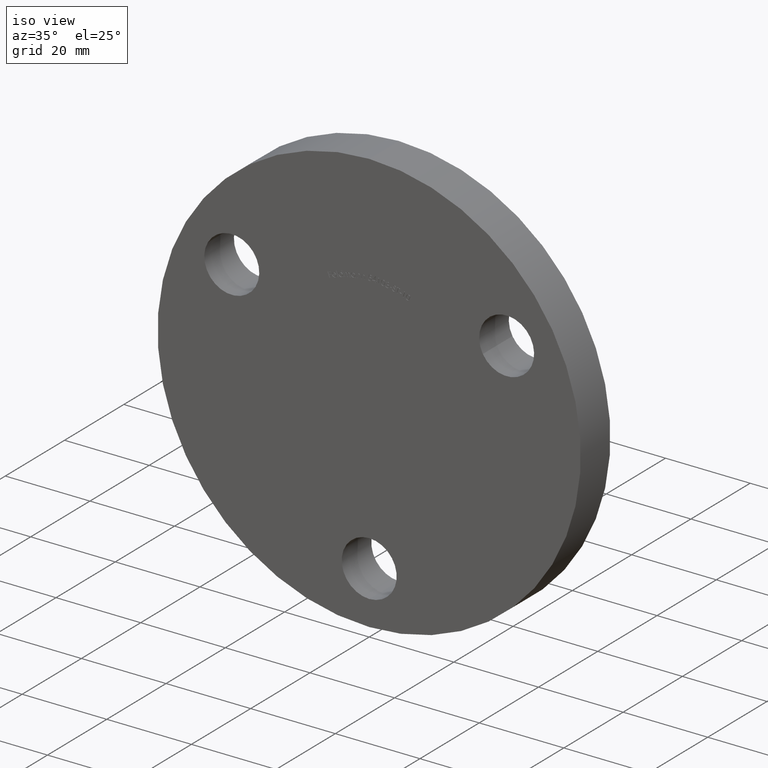
[diagram: clean part render]
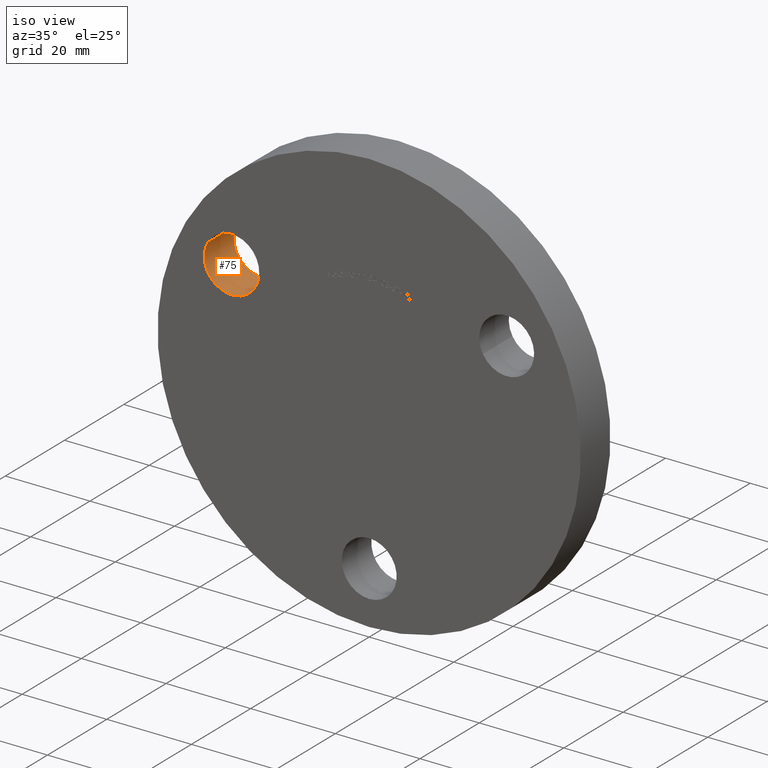
[diagram: same view with one face highlighted and labeled with its STEP entity id]
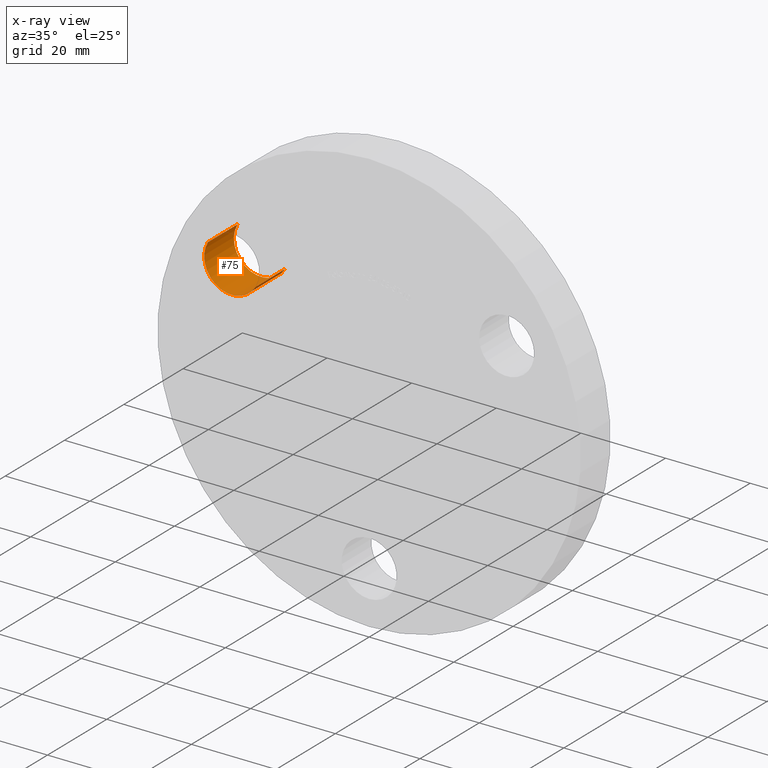
[diagram: x-ray of the same camera — body ghosted, the highlighted face saturated]
A machine part, iso view. The second image highlights one B-rep face of the part: STEP entity #75.
The next image is the same camera in x-ray: the body ghosted, the highlighted face saturated — about 0% of this face is hidden behind the body in this view.
In plain terms, the highlighted cylindrical surface (edge-blend (fillet) strip) has radius 6.5 mm, axis along (0, 1, 0).
Its self-contained STEP definition (entity closure, byte-faithful):
#75 = ADVANCED_FACE ( 'NONE', ( #7315 ), #4789, .F. ) ;
#269 = CARTESIAN_POINT ( 'NONE',  ( -26.84678751731773600, 0.0000000000000000000, 15.49999999999975000 ) ) ;
#649 = CARTESIAN_POINT ( 'NONE',  ( -26.84678751731773600, 10.00000000000000000, 15.49999999999975000 ) ) ;
#1003 = ORIENTED_EDGE ( 'NONE', *, *, #11495, .T. ) ;
#1180 = AXIS2_PLACEMENT_3D ( 'NONE', #7341, #4210, #11296 ) ;
#1588 = VERTEX_POINT ( 'NONE', #6231 ) ;
#1964 = CARTESIAN_POINT ( 'NONE',  ( -38.10511776651549800, 0.0000000000000000000, 21.99999999999964500 ) ) ;
#1980 = EDGE_LOOP ( 'NONE', ( #7804, #10419, #1003, #8667 ) ) ;
#3399 = DIRECTION ( 'NONE',  ( 0.0000000000000000000, 1.000000000000000000, 0.0000000000000000000 ) ) ;
#3667 = LINE ( 'NONE', #12308, #7136 ) ;
#3831 = AXIS2_PLACEMENT_3D ( 'NONE', #10325, #5214, #9380 ) ;
#4210 = DIRECTION ( 'NONE',  ( 0.0000000000000000000, 1.000000000000000000, 0.0000000000000000000 ) ) ;
#4644 = VERTEX_POINT ( 'NONE', #269 ) ;
#4789 = CYLINDRICAL_SURFACE ( 'NONE', #3831, 6.500000000000000000 ) ;
#5214 = DIRECTION ( 'NONE',  ( 0.0000000000000000000, 1.000000000000000000, 0.0000000000000000000 ) ) ;
#5554 = CIRCLE ( 'NONE', #1180, 6.500000000000000000 ) ;
#6059 = VERTEX_POINT ( 'NONE', #649 ) ;
#6210 = VERTEX_POINT ( 'NONE', #1964 ) ;
#6231 = CARTESIAN_POINT ( 'NONE',  ( -38.10511776651549800, 10.00000000000000000, 21.99999999999964500 ) ) ;
#7136 = VECTOR ( 'NONE', #7291, 1000.000000000000000 ) ;
#7291 = DIRECTION ( 'NONE',  ( 0.0000000000000000000, 1.000000000000000000, 0.0000000000000000000 ) ) ;
#7315 = FACE_OUTER_BOUND ( 'NONE', #1980, .T. ) ;
#7341 = CARTESIAN_POINT ( 'NONE',  ( -32.47595264191662100, 0.0000000000000000000, 18.74999999999969800 ) ) ;
#7565 = EDGE_CURVE ( 'NONE', #6210, #1588, #9706, .T. ) ;
#7804 = ORIENTED_EDGE ( 'NONE', *, *, #7565, .F. ) ;
#8132 = CIRCLE ( 'NONE', #12363, 6.500000000000000000 ) ;
#8425 = CARTESIAN_POINT ( 'NONE',  ( -38.10511776651549800, 0.0000000000000000000, 21.99999999999964500 ) ) ;
#8667 = ORIENTED_EDGE ( 'NONE', *, *, #8984, .T. ) ;
#8984 = EDGE_CURVE ( 'NONE', #6059, #1588, #8132, .T. ) ;
#9380 = DIRECTION ( 'NONE',  ( 0.8660254037844433700, 0.0000000000000000000, -0.4999999999999919500 ) ) ;
#9706 = LINE ( 'NONE', #8425, #10996 ) ;
#10325 = CARTESIAN_POINT ( 'NONE',  ( -32.47595264191662100, 0.0000000000000000000, 18.74999999999969800 ) ) ;
#10419 = ORIENTED_EDGE ( 'NONE', *, *, #12523, .F. ) ;
#10996 = VECTOR ( 'NONE', #3399, 1000.000000000000000 ) ;
#11296 = DIRECTION ( 'NONE',  ( 0.8660254037844433700, 0.0000000000000000000, -0.4999999999999919500 ) ) ;
#11495 = EDGE_CURVE ( 'NONE', #4644, #6059, #3667, .T. ) ;
#11692 = DIRECTION ( 'NONE',  ( 0.8660254037844433700, 0.0000000000000000000, -0.4999999999999919500 ) ) ;
#11779 = CARTESIAN_POINT ( 'NONE',  ( -32.47595264191662100, 10.00000000000000000, 18.74999999999969800 ) ) ;
#11864 = DIRECTION ( 'NONE',  ( 0.0000000000000000000, 1.000000000000000000, 0.0000000000000000000 ) ) ;
#12308 = CARTESIAN_POINT ( 'NONE',  ( -26.84678751731773600, 0.0000000000000000000, 15.49999999999975000 ) ) ;
#12363 = AXIS2_PLACEMENT_3D ( 'NONE', #11779, #11864, #11692 ) ;
#12523 = EDGE_CURVE ( 'NONE', #4644, #6210, #5554, .T. ) ;